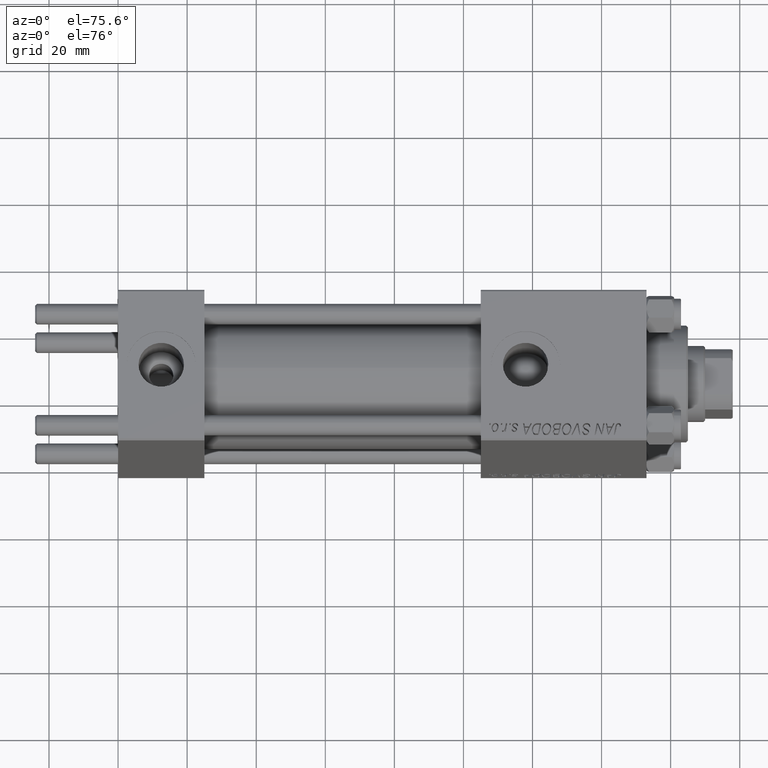
[diagram: clean part render]
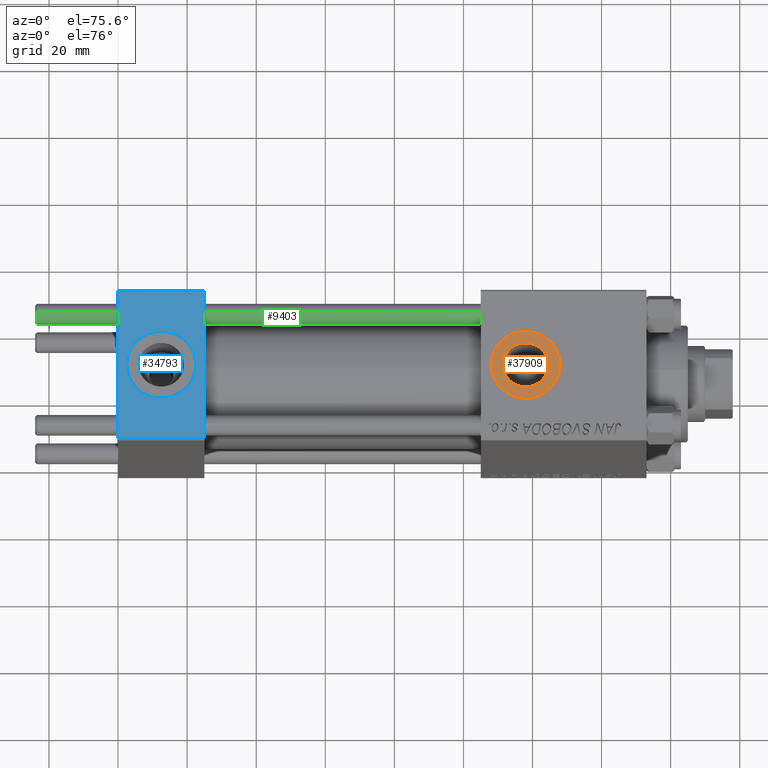
[diagram: same view with three faces highlighted in distinct colors, each labeled with its STEP entity id]
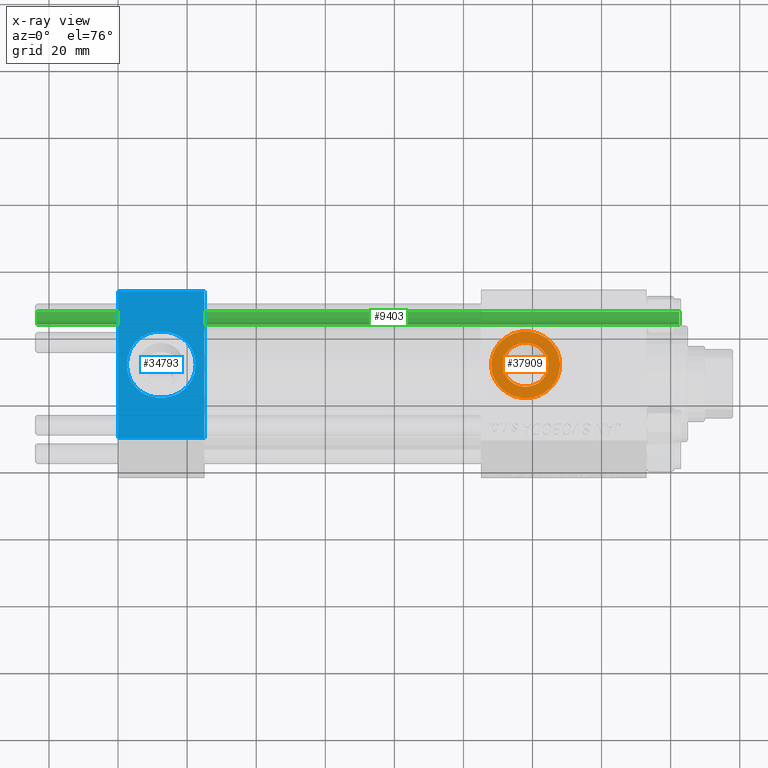
[diagram: x-ray of the same camera — body ghosted, the three highlighted faces saturated]
A machine part, auxiliary view with three faces highlighted in distinct colors.
The next image is the same camera in x-ray (body ghosted, the three faces saturated) — at least one of them is partly hidden behind the body in this view.
Their STEP definitions:

[orange] entity #37909 — the highlighted planar face has unit normal (0, 0, 1).
#606 = AXIS2_PLACEMENT_3D ( 'NONE', #12871, #43737, #32871 ) ;
#2943 = EDGE_LOOP ( 'NONE', ( #15487, #7499 ) ) ;
#6358 = EDGE_CURVE ( 'NONE', #46685, #22959, #25646, .T. ) ;
#7499 = ORIENTED_EDGE ( 'NONE', *, *, #6358, .T. ) ;
#8582 = EDGE_CURVE ( 'NONE', #36216, #26396, #28084, .T. ) ;
#9121 = CARTESIAN_POINT ( 'NONE',  ( 111.4200000000000017, -5.204170427930420494E-15, 22.29999999999999716 ) ) ;
#9773 = DIRECTION ( 'NONE',  ( 1.000000000000000000, 0.000000000000000000, 0.000000000000000000 ) ) ;
#10815 = DIRECTION ( 'NONE',  ( 0.000000000000000000, 0.000000000000000000, 1.000000000000000000 ) ) ;
#11406 = DIRECTION ( 'NONE',  ( 1.000000000000000000, 0.000000000000000000, 0.000000000000000000 ) ) ;
#12871 = CARTESIAN_POINT ( 'NONE',  ( 118.0000000000000142, -5.204170427930420494E-15, 22.29999999999999716 ) ) ;
#15228 = ORIENTED_EDGE ( 'NONE', *, *, #8582, .T. ) ;
#15487 = ORIENTED_EDGE ( 'NONE', *, *, #42356, .T. ) ;
#18394 = EDGE_LOOP ( 'NONE', ( #36590, #15228 ) ) ;
#20569 = AXIS2_PLACEMENT_3D ( 'NONE', #25747, #10815, #49774 ) ;
#20640 = DIRECTION ( 'NONE',  ( 0.000000000000000000, 0.000000000000000000, 1.000000000000000000 ) ) ;
#22959 = VERTEX_POINT ( 'NONE', #9121 ) ;
#25646 = CIRCLE ( 'NONE', #606, 6.580000000000002736 ) ;
#25747 = CARTESIAN_POINT ( 'NONE',  ( 118.0000000000000142, -5.204170427930420494E-15, 22.29999999999999716 ) ) ;
#26396 = VERTEX_POINT ( 'NONE', #35924 ) ;
#26504 = AXIS2_PLACEMENT_3D ( 'NONE', #32685, #45318, #41015 ) ;
#26706 = CARTESIAN_POINT ( 'NONE',  ( 108.0000000000000142, -3.979523628783067435E-15, 22.29999999999999716 ) ) ;
#28084 = CIRCLE ( 'NONE', #26504, 9.999999999999994671 ) ;
#28462 = CARTESIAN_POINT ( 'NONE',  ( 124.5800000000000125, -4.398352834091461452E-15, 22.29999999999999716 ) ) ;
#32685 = CARTESIAN_POINT ( 'NONE',  ( 118.0000000000000142, -5.204170427930420494E-15, 22.29999999999999716 ) ) ;
#32871 = DIRECTION ( 'NONE',  ( 1.000000000000000000, 0.000000000000000000, 0.000000000000000000 ) ) ;
#35142 = CIRCLE ( 'NONE', #48074, 6.580000000000002736 ) ;
#35924 = CARTESIAN_POINT ( 'NONE',  ( 128.0000000000000000, -5.204170427930420494E-15, 22.29999999999999716 ) ) ;
#36216 = VERTEX_POINT ( 'NONE', #26706 ) ;
#36590 = ORIENTED_EDGE ( 'NONE', *, *, #46086, .T. ) ;
#37909 = ADVANCED_FACE ( 'NONE', ( #49283, #49034 ), #45721, .T. ) ;
#41015 = DIRECTION ( 'NONE',  ( 1.000000000000000000, 0.000000000000000000, 0.000000000000000000 ) ) ;
#42268 = CARTESIAN_POINT ( 'NONE',  ( 118.0000000000000142, -5.204170427930420494E-15, 22.29999999999999716 ) ) ;
#42356 = EDGE_CURVE ( 'NONE', #22959, #46685, #35142, .T. ) ;
#43737 = DIRECTION ( 'NONE',  ( -0.000000000000000000, -0.000000000000000000, -1.000000000000000000 ) ) ;
#44435 = CARTESIAN_POINT ( 'NONE',  ( 118.0000000000000142, -5.204170427930420494E-15, 22.29999999999999716 ) ) ;
#45318 = DIRECTION ( 'NONE',  ( 0.000000000000000000, 0.000000000000000000, 1.000000000000000000 ) ) ;
#45394 = CIRCLE ( 'NONE', #46961, 9.999999999999994671 ) ;
#45721 = PLANE ( 'NONE',  #20569 ) ;
#46072 = DIRECTION ( 'NONE',  ( -0.000000000000000000, -0.000000000000000000, -1.000000000000000000 ) ) ;
#46086 = EDGE_CURVE ( 'NONE', #26396, #36216, #45394, .T. ) ;
#46685 = VERTEX_POINT ( 'NONE', #28462 ) ;
#46961 = AXIS2_PLACEMENT_3D ( 'NONE', #44435, #20640, #9773 ) ;
#48074 = AXIS2_PLACEMENT_3D ( 'NONE', #42268, #46072, #11406 ) ;
#49034 = FACE_OUTER_BOUND ( 'NONE', #18394, .T. ) ;
#49283 = FACE_BOUND ( 'NONE', #2943, .T. ) ;
#49774 = DIRECTION ( 'NONE',  ( 1.000000000000000000, 0.000000000000000000, -0.000000000000000000 ) ) ;

[blue] entity #34793 — the highlighted planar face has unit normal (0, 0, -1).
#1292 = VECTOR ( 'NONE', #11314, 1000.000000000000000 ) ;
#2129 = DIRECTION ( 'NONE',  ( 0.000000000000000000, 7.709882115452476934E-17, -1.000000000000000000 ) ) ;
#2487 = CARTESIAN_POINT ( 'NONE',  ( 22.50000000000000000, -1.734723475976807094E-15, 22.50000000000000000 ) ) ;
#2633 = FACE_OUTER_BOUND ( 'NONE', #26285, .T. ) ;
#3233 = CARTESIAN_POINT ( 'NONE',  ( 12.50000000000000000, -1.734723475976807094E-15, 22.50000000000000000 ) ) ;
#3434 = ORIENTED_EDGE ( 'NONE', *, *, #13802, .F. ) ;
#3654 = VERTEX_POINT ( 'NONE', #2487 ) ;
#3780 = EDGE_CURVE ( 'NONE', #5166, #4605, #7516, .T. ) ;
#4605 = VERTEX_POINT ( 'NONE', #18727 ) ;
#5166 = VERTEX_POINT ( 'NONE', #10152 ) ;
#5391 = LINE ( 'NONE', #47900, #45274 ) ;
#7277 = CARTESIAN_POINT ( 'NONE',  ( 25.00000000000000000, 22.50000000000000000, 22.50000000000000355 ) ) ;
#7516 = LINE ( 'NONE', #7277, #1292 ) ;
#7683 = CARTESIAN_POINT ( 'NONE',  ( 0.000000000000000000, -21.99999999999997868, 22.50000000000000000 ) ) ;
#8879 = ORIENTED_EDGE ( 'NONE', *, *, #23300, .T. ) ;
#10152 = CARTESIAN_POINT ( 'NONE',  ( 25.00000000000000000, 21.99999999999999289, 22.50000000000000355 ) ) ;
#11276 = CARTESIAN_POINT ( 'NONE',  ( 2.500000000000003997, -5.100766768294543310E-16, 22.50000000000000000 ) ) ;
#11314 = DIRECTION ( 'NONE',  ( 0.000000000000000000, -1.000000000000000000, -7.709882115452476934E-17 ) ) ;
#13751 = FACE_BOUND ( 'NONE', #34217, .T. ) ;
#13802 = EDGE_CURVE ( 'NONE', #39082, #3654, #45155, .T. ) ;
#17548 = DIRECTION ( 'NONE',  ( 0.000000000000000000, 1.000000000000000000, 7.709882115452476934E-17 ) ) ;
#18132 = CARTESIAN_POINT ( 'NONE',  ( 0.000000000000000000, 22.50000000000000000, 22.50000000000000355 ) ) ;
#18727 = CARTESIAN_POINT ( 'NONE',  ( 25.00000000000000000, -21.99999999999997868, 22.50000000000000000 ) ) ;
#18964 = ORIENTED_EDGE ( 'NONE', *, *, #3780, .F. ) ;
#19356 = CIRCLE ( 'NONE', #32293, 9.999999999999998224 ) ;
#19420 = VECTOR ( 'NONE', #23976, 1000.000000000000000 ) ;
#20585 = ORIENTED_EDGE ( 'NONE', *, *, #30868, .T. ) ;
#20943 = EDGE_CURVE ( 'NONE', #3654, #39082, #19356, .T. ) ;
#21159 = VECTOR ( 'NONE', #22427, 1000.000000000000000 ) ;
#21597 = CARTESIAN_POINT ( 'NONE',  ( 25.00000000000000000, 22.50000000000000000, 22.50000000000000355 ) ) ;
#22427 = DIRECTION ( 'NONE',  ( 0.000000000000000000, -1.000000000000000000, -7.709882115452476934E-17 ) ) ;
#22888 = AXIS2_PLACEMENT_3D ( 'NONE', #21597, #2129, #17548 ) ;
#23300 = EDGE_CURVE ( 'NONE', #31974, #4605, #36380, .T. ) ;
#23396 = EDGE_CURVE ( 'NONE', #5166, #34146, #5391, .T. ) ;
#23953 = CARTESIAN_POINT ( 'NONE',  ( 12.50000000000000000, -1.734723475976807094E-15, 22.50000000000000000 ) ) ;
#23976 = DIRECTION ( 'NONE',  ( 1.000000000000000000, 0.000000000000000000, 0.000000000000000000 ) ) ;
#24458 = DIRECTION ( 'NONE',  ( 0.000000000000000000, 0.000000000000000000, 1.000000000000000000 ) ) ;
#25400 = PLANE ( 'NONE',  #22888 ) ;
#25999 = DIRECTION ( 'NONE',  ( 1.000000000000000000, 0.000000000000000000, 0.000000000000000000 ) ) ;
#26248 = DIRECTION ( 'NONE',  ( 0.000000000000000000, 0.000000000000000000, 1.000000000000000000 ) ) ;
#26285 = EDGE_LOOP ( 'NONE', ( #20585, #8879, #18964, #33087 ) ) ;
#28404 = DIRECTION ( 'NONE',  ( -1.000000000000000000, 0.000000000000000000, 0.000000000000000000 ) ) ;
#29786 = LINE ( 'NONE', #18132, #21159 ) ;
#30868 = EDGE_CURVE ( 'NONE', #34146, #31974, #29786, .T. ) ;
#31811 = DIRECTION ( 'NONE',  ( 1.000000000000000000, 0.000000000000000000, 0.000000000000000000 ) ) ;
#31974 = VERTEX_POINT ( 'NONE', #7683 ) ;
#32293 = AXIS2_PLACEMENT_3D ( 'NONE', #3233, #26248, #25999 ) ;
#33087 = ORIENTED_EDGE ( 'NONE', *, *, #23396, .T. ) ;
#34146 = VERTEX_POINT ( 'NONE', #43494 ) ;
#34217 = EDGE_LOOP ( 'NONE', ( #43383, #3434 ) ) ;
#34793 = ADVANCED_FACE ( 'NONE', ( #13751, #2633 ), #25400, .F. ) ;
#35426 = AXIS2_PLACEMENT_3D ( 'NONE', #23953, #24458, #31811 ) ;
#36380 = LINE ( 'NONE', #47009, #19420 ) ;
#39082 = VERTEX_POINT ( 'NONE', #11276 ) ;
#43383 = ORIENTED_EDGE ( 'NONE', *, *, #20943, .F. ) ;
#43494 = CARTESIAN_POINT ( 'NONE',  ( 0.000000000000000000, 21.99999999999999289, 22.50000000000000355 ) ) ;
#45155 = CIRCLE ( 'NONE', #35426, 9.999999999999998224 ) ;
#45274 = VECTOR ( 'NONE', #28404, 1000.000000000000000 ) ;
#47009 = CARTESIAN_POINT ( 'NONE',  ( 25.00000000000000000, -21.99999999999999289, 22.50000000000000000 ) ) ;
#47900 = CARTESIAN_POINT ( 'NONE',  ( 0.000000000000000000, 21.99999999999999289, 22.50000000000000355 ) ) ;

[green] entity #9403 — the highlighted cylindrical surface (edge-blend (fillet) strip) has radius 3 mm, axis along (-1, -0, -0).
#3175 = DIRECTION ( 'NONE',  ( 0.000000000000000000, 0.000000000000000000, -1.000000000000000000 ) ) ;
#3517 = LINE ( 'NONE', #34395, #4183 ) ;
#4098 = EDGE_CURVE ( 'NONE', #23435, #20357, #17440, .T. ) ;
#4175 = ORIENTED_EDGE ( 'NONE', *, *, #30504, .T. ) ;
#4183 = VECTOR ( 'NONE', #10367, 1000.000000000000000 ) ;
#6079 = AXIS2_PLACEMENT_3D ( 'NONE', #27196, #49760, #42636 ) ;
#6237 = ORIENTED_EDGE ( 'NONE', *, *, #45824, .F. ) ;
#8664 = VERTEX_POINT ( 'NONE', #14444 ) ;
#9403 = ADVANCED_FACE ( 'NONE', ( #10534 ), #22410, .T. ) ;
#10367 = DIRECTION ( 'NONE',  ( -0.000000000000000000, -0.000000000000000000, -1.000000000000000000 ) ) ;
#10516 = DIRECTION ( 'NONE',  ( 1.000000000000000000, 0.000000000000000000, 0.000000000000000000 ) ) ;
#10534 = FACE_OUTER_BOUND ( 'NONE', #44451, .T. ) ;
#14444 = CARTESIAN_POINT ( 'NONE',  ( 3.000000000000000444, 3.673940397442060361E-16, 0.5000000000000281997 ) ) ;
#14557 = DIRECTION ( 'NONE',  ( -0.000000000000000000, -0.000000000000000000, -1.000000000000000000 ) ) ;
#15572 = ORIENTED_EDGE ( 'NONE', *, *, #42827, .T. ) ;
#16242 = VECTOR ( 'NONE', #19704, 1000.000000000000000 ) ;
#16392 = LINE ( 'NONE', #27045, #16242 ) ;
#17440 = CIRCLE ( 'NONE', #23886, 3.000000000000000444 ) ;
#19704 = DIRECTION ( 'NONE',  ( -0.000000000000000000, -0.000000000000000000, -1.000000000000000000 ) ) ;
#20357 = VERTEX_POINT ( 'NONE', #33729 ) ;
#22140 = CARTESIAN_POINT ( 'NONE',  ( 0.000000000000000000, 0.000000000000000000, 186.5000000000000568 ) ) ;
#22410 = CYLINDRICAL_SURFACE ( 'NONE', #45125, 3.000000000000000444 ) ;
#22653 = DIRECTION ( 'NONE',  ( -1.000000000000000000, 0.000000000000000000, 0.000000000000000000 ) ) ;
#23435 = VERTEX_POINT ( 'NONE', #29178 ) ;
#23819 = VERTEX_POINT ( 'NONE', #29866 ) ;
#23886 = AXIS2_PLACEMENT_3D ( 'NONE', #22140, #3175, #10516 ) ;
#27045 = CARTESIAN_POINT ( 'NONE',  ( 3.000000000000000444, 3.673940397442060361E-16, 187.0000000000000000 ) ) ;
#27196 = CARTESIAN_POINT ( 'NONE',  ( 0.000000000000000000, 0.000000000000000000, 0.5000000000000281997 ) ) ;
#29178 = CARTESIAN_POINT ( 'NONE',  ( 3.000000000000000444, 3.673940397442060361E-16, 186.5000000000000568 ) ) ;
#29866 = CARTESIAN_POINT ( 'NONE',  ( -3.000000000000000444, 0.000000000000000000, 0.5000000000000281997 ) ) ;
#30504 = EDGE_CURVE ( 'NONE', #20357, #23819, #3517, .T. ) ;
#33729 = CARTESIAN_POINT ( 'NONE',  ( -3.000000000000000444, 0.000000000000000000, 186.5000000000000568 ) ) ;
#34395 = CARTESIAN_POINT ( 'NONE',  ( -3.000000000000000444, 0.000000000000000000, 187.0000000000000000 ) ) ;
#39012 = ORIENTED_EDGE ( 'NONE', *, *, #4098, .T. ) ;
#42636 = DIRECTION ( 'NONE',  ( 1.000000000000000000, 0.000000000000000000, 0.000000000000000000 ) ) ;
#42827 = EDGE_CURVE ( 'NONE', #23819, #8664, #49708, .T. ) ;
#44451 = EDGE_LOOP ( 'NONE', ( #6237, #39012, #4175, #15572 ) ) ;
#45125 = AXIS2_PLACEMENT_3D ( 'NONE', #45939, #14557, #22653 ) ;
#45824 = EDGE_CURVE ( 'NONE', #23435, #8664, #16392, .T. ) ;
#45939 = CARTESIAN_POINT ( 'NONE',  ( 0.000000000000000000, 0.000000000000000000, 187.0000000000000000 ) ) ;
#49708 = CIRCLE ( 'NONE', #6079, 3.000000000000000444 ) ;
#49760 = DIRECTION ( 'NONE',  ( -0.000000000000000000, -0.000000000000000000, 1.000000000000000000 ) ) ;